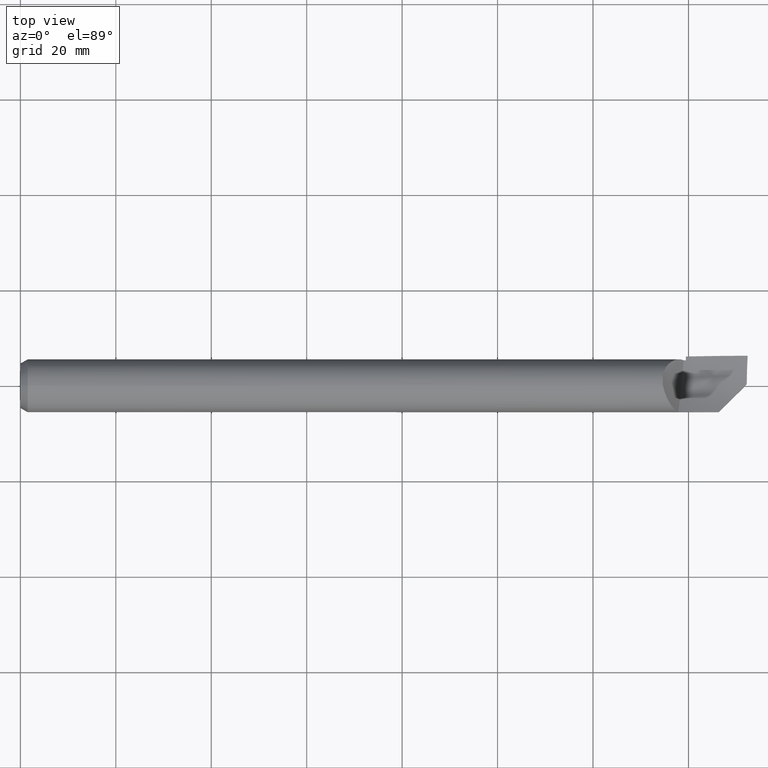
[diagram: clean part render]
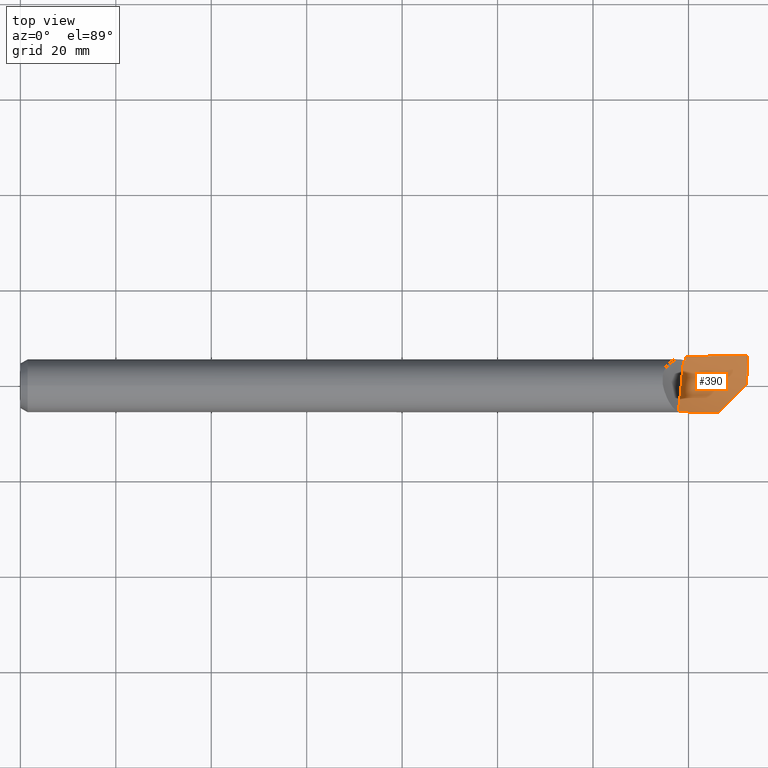
[diagram: same view with one face highlighted and labeled with its STEP entity id]
A machine part, top view. The second image highlights one B-rep face of the part: STEP entity #390.
In plain terms, the highlighted face is a freeform B-spline surface patch.
Its self-contained STEP definition (entity closure, byte-faithful):
#5 = CARTESIAN_POINT ( 'NONE',  ( 5.428289023255820744, -0.2151305318689210322, 0.03907271116514884901 ) ) ;
#7 = VERTEX_POINT ( 'NONE', #640 ) ;
#12 = ORIENTED_EDGE ( 'NONE', *, *, #306, .T. ) ;
#20 =( BOUNDED_CURVE ( )  B_SPLINE_CURVE ( 2, ( #286, #75, #179 ),
 .UNSPECIFIED., .F., .T. ) 
 B_SPLINE_CURVE_WITH_KNOTS ( ( 3, 3 ),
 ( 0.3930158259847691404, 0.4074109194752292273 ),
 .UNSPECIFIED. ) 
 CURVE ( )  GEOMETRIC_REPRESENTATION_ITEM ( )  RATIONAL_B_SPLINE_CURVE ( ( 0.9733513826577548933, 0.9734889251378002761, 0.9736403117979952615 ) ) 
 REPRESENTATION_ITEM ( '' )  );
#28 = CARTESIAN_POINT ( 'NONE',  ( 5.759944547215720689, -0.2184195880241632803, 0.01003524127038001382 ) ) ;
#31 = B_SPLINE_CURVE_WITH_KNOTS ( 'NONE', 3,
 ( #165, #399, #279, #108 ),
 .UNSPECIFIED., .F., .F.,
 ( 4, 4 ),
 ( 9.486140722434075462E-13, 0.008165861144580312952 ),
 .UNSPECIFIED. ) ;
#34 = CARTESIAN_POINT ( 'NONE',  ( 5.992409909881796892, 0.01404577464190508510, -0.04600755233719666659 ) ) ;
#37 = CARTESIAN_POINT ( 'NONE',  ( 5.993796581184937189, 0.09343502413978975463, -0.04035679793326613779 ) ) ;
#66 = VERTEX_POINT ( 'NONE', #609 ) ;
#75 = CARTESIAN_POINT ( 'NONE',  ( 5.480670511054988481, 0.2112596837126563543, -0.05637239902461495256 ) ) ;
#86 = CARTESIAN_POINT ( 'NONE',  ( 5.952458880642437222, -0.02590525459744806233, -0.04690927801593707674 ) ) ;
#108 = CARTESIAN_POINT ( 'NONE',  ( 5.489999999999968239, 0.2426219749193216091, -0.05138085314958806132 ) ) ;
#113 = ORIENTED_EDGE ( 'NONE', *, *, #331, .T. ) ;
#117 = EDGE_LOOP ( 'NONE', ( #280, #413, #685, #430, #12, #289, #113, #439 ) ) ;
#128 = CARTESIAN_POINT ( 'NONE',  ( 5.489999999999968239, 0.2426219749193216091, -0.05138085314958806132 ) ) ;
#130 = CARTESIAN_POINT ( 'NONE',  ( 5.675925925925927373, 0.09757933157101621180, -0.08420579190847984896 ) ) ;
#133 = CARTESIAN_POINT ( 'NONE',  ( 5.992943527074801047, 0.05368886949585607860, -0.04447926573626069524 ) ) ;
#136 = CARTESIAN_POINT ( 'NONE',  ( 5.926130615619848996, 0.2477060359061866723, -0.008186851868489166198 ) ) ;
#139 = CARTESIAN_POINT ( 'NONE',  ( 5.809895244831493777, 0.2472116736001752357, -0.01975824981623535564 ) ) ;
#142 = CARTESIAN_POINT ( 'NONE',  ( 5.992409909881796892, 0.01404577464190508510, -0.04600755233719666659 ) ) ;
#144 = CARTESIAN_POINT ( 'NONE',  ( 5.848640842118944860, 0.2474659832089972644, -0.01591075100367607409 ) ) ;
#159 = CARTESIAN_POINT ( 'NONE',  ( 5.453529265273479254, 0.02632038727175991036, -0.05321014791944884276 ) ) ;
#165 = CARTESIAN_POINT ( 'NONE',  ( 5.809895244831493777, 0.2472116736001752357, -0.01975824981623535564 ) ) ;
#171 = B_SPLINE_CURVE_WITH_KNOTS ( 'NONE', 3,
 ( #201, #421, #246, #136, #308, #144, #139 ),
 .UNSPECIFIED., .F., .F.,
 ( 4, 3, 4 ),
 ( 6.776263578034401960E-21, 0.001885633772096463210, 0.004852637163711255412 ),
 .UNSPECIFIED. ) ;
#179 = CARTESIAN_POINT ( 'NONE',  ( 5.471346566983472215, 0.2110442653468279917, -0.05716765312847500030 ) ) ;
#183 = CARTESIAN_POINT ( 'NONE',  ( 5.351851851851854747, -0.1213287675546839833, -0.04010792443079629760 ) ) ;
#184 = VERTEX_POINT ( 'NONE', #142 ) ;
#186 = CARTESIAN_POINT ( 'NONE',  ( 6.000000000000000888, 0.2477392110322483298, -0.0008026259127263668785 ) ) ;
#196 = CARTESIAN_POINT ( 'NONE',  ( 5.994331206119609234, 0.1133106296732995510, -0.03741539065945066744 ) ) ;
#197 = EDGE_CURVE ( 'NONE', #184, #576, #629, .T. ) ;
#200 = CARTESIAN_POINT ( 'NONE',  ( 5.675925925925928262, 0.3026628233134074919, -0.01811048715039669660 ) ) ;
#201 = CARTESIAN_POINT ( 'NONE',  ( 6.000000000000000888, 0.2477392110322483298, -0.0008026259127263668785 ) ) ;
#207 = CARTESIAN_POINT ( 'NONE',  ( 5.759944547215720689, -0.2184195880241632803, 0.01003524127038001382 ) ) ;
#215 = VERTEX_POINT ( 'NONE', #251 ) ;
#216 = CARTESIAN_POINT ( 'NONE',  ( 5.467775382269694617, 0.1747646242851793319, -0.06124491988081876004 ) ) ;
#224 = CARTESIAN_POINT ( 'NONE',  ( 5.432181049313783205, -0.1841263147728427196, 0.01977626706365450890 ) ) ;
#229 = CARTESIAN_POINT ( 'NONE',  ( 5.593749806622911436, -0.2177474673098442060, 0.02466412019502455671 ) ) ;
#234 = CARTESIAN_POINT ( 'NONE',  ( 5.027777777777780344, -0.2711689373457302765, 0.1356472697095485735 ) ) ;
#242 = CARTESIAN_POINT ( 'NONE',  ( 5.996235550854351004, 0.1720403349151072014, -0.02608037137611426623 ) ) ;
#246 = CARTESIAN_POINT ( 'NONE',  ( 5.950754092320284627, 0.2477536593525600239, -0.005729369259274476670 ) ) ;
#251 = CARTESIAN_POINT ( 'NONE',  ( 5.809895244831493777, 0.2472116736001752357, -0.01975824981623535564 ) ) ;
#260 = CARTESIAN_POINT ( 'NONE',  ( 5.464212849416286488, 0.1377136875928074988, -0.06237143978746857026 ) ) ;
#279 = CARTESIAN_POINT ( 'NONE',  ( 5.596629930743068471, 0.2448327961100064953, -0.04093195773288702682 ) ) ;
#280 = ORIENTED_EDGE ( 'NONE', *, *, #638, .F. ) ;
#282 = CARTESIAN_POINT ( 'NONE',  ( 5.471346566983472215, 0.2110442653468279917, -0.05716765312847500030 ) ) ;
#286 = CARTESIAN_POINT ( 'NONE',  ( 5.490000000000002878, 0.2114691027157991898, -0.05557554405431821415 ) ) ;
#289 = ORIENTED_EDGE ( 'NONE', *, *, #606, .T. ) ;
#291 = FACE_OUTER_BOUND ( 'NONE', #117, .T. ) ;
#292 = EDGE_CURVE ( 'NONE', #215, #335, #31, .T. ) ;
#296 = CARTESIAN_POINT ( 'NONE',  ( 5.759944547215720689, -0.2184195880241632803, 0.01003524127038001382 ) ) ;
#298 =( BOUNDED_SURFACE ( )  B_SPLINE_SURFACE ( 3, 2, ( 
 ( #341, #461, #471, #234, #635 ),
 ( #517, #465, #183, #572, #412 ),
 ( #642, #130, #647, #714, #526 ),
 ( #717, #200, #603, #359, #476 ) ),
 .UNSPECIFIED., .F., .F., .T. ) 
 B_SPLINE_SURFACE_WITH_KNOTS ( ( 4, 4 ),
 ( 3, 2, 3 ),
 ( 0.000000000000000000, 1.000000000000000000 ),
 ( 0.000000000000000000, 0.5000000000000000000, 1.000000000000000000 ),
 .UNSPECIFIED. ) 
 GEOMETRIC_REPRESENTATION_ITEM ( )  RATIONAL_B_SPLINE_SURFACE ( (
 ( 1.000000000000000000, 0.9914448613738103822, 1.000000000000000000, 0.9914448613738103822, 1.000000000000000000),
 ( 0.9357396776127722138, 0.9277342949527689342, 0.9357396776127722138, 0.9277342949527689342, 0.9357396776127722138),
 ( 0.9357396776127722138, 0.9277342949527689342, 0.9357396776127722138, 0.9277342949527689342, 0.9357396776127722138),
 ( 1.000000000000000000, 0.9914448613738103822, 1.000000000000000000, 0.9914448613738103822, 1.000000000000000000) ) ) 
 REPRESENTATION_ITEM ( '' )  SURFACE ( )  );
#306 = EDGE_CURVE ( 'NONE', #66, #7, #20, .T. ) ;
#308 = CARTESIAN_POINT ( 'NONE',  ( 5.887386176554733730, 0.2476311015767038437, -0.01205364072063427536 ) ) ;
#309 = CARTESIAN_POINT ( 'NONE',  ( 5.835613050715351413, -0.1427510845245330839, -0.02409170463590315156 ) ) ;
#331 = EDGE_CURVE ( 'NONE', #705, #576, #631, .T. ) ;
#335 = VERTEX_POINT ( 'NONE', #128 ) ;
#336 = CARTESIAN_POINT ( 'NONE',  ( 5.442851900054501257, -0.08240101752907343091, -0.02541948207811101437 ) ) ;
#341 = CARTESIAN_POINT ( 'NONE',  ( 6.000000000000000888, -0.2998500000000000054, 0.02136551425118393688 ) ) ;
#359 = CARTESIAN_POINT ( 'NONE',  ( 5.027777777777780344, 0.2876624987053781890, -0.09582829018325357551 ) ) ;
#363 = B_SPLINE_CURVE_WITH_KNOTS ( 'NONE', 3,
 ( #597, #645, #242, #196, #37, #133, #532, #648 ),
 .UNSPECIFIED., .F., .F.,
 ( 4, 2, 2, 4 ),
 ( 4.065758146820641628E-20, 0.003035248955598651363, 0.004552873433397977045, 0.006070497911197302726 ),
 .UNSPECIFIED. ) ;
#370 = CARTESIAN_POINT ( 'NONE',  ( 5.428289023255820744, -0.2151305318689210322, 0.03907271116514884901 ) ) ;
#381 = EDGE_CURVE ( 'NONE', #335, #66, #456, .T. ) ;
#390 = ADVANCED_FACE ( 'NONE', ( #291 ), #298, .T. ) ;
#399 = CARTESIAN_POINT ( 'NONE',  ( 5.703263665431204998, 0.2463618655492744725, -0.03039089554663984213 ) ) ;
#407 = CARTESIAN_POINT ( 'NONE',  ( 5.490000000000002878, 0.2218972837053053981, -0.05440913279074871545 ) ) ;
#412 = CARTESIAN_POINT ( 'NONE',  ( 4.703703703703706829, -0.1275752847551152036, -0.007339084284587429202 ) ) ;
#413 = ORIENTED_EDGE ( 'NONE', *, *, #661, .T. ) ;
#421 = CARTESIAN_POINT ( 'NONE',  ( 5.975377276411506955, 0.2477648454692880087, -0.003267969609746357480 ) ) ;
#430 = ORIENTED_EDGE ( 'NONE', *, *, #381, .T. ) ;
#439 = ORIENTED_EDGE ( 'NONE', *, *, #197, .F. ) ;
#445 = CARTESIAN_POINT ( 'NONE',  ( 5.457089790918026040, 0.06348854570549856968, -0.05835484118810305154 ) ) ;
#451 = B_SPLINE_CURVE_WITH_KNOTS ( 'NONE', 3,
 ( #282, #216, #260, #445, #159, #741, #336, #568, #224, #5 ),
 .UNSPECIFIED., .F., .F.,
 ( 4, 2, 2, 2, 4 ),
 ( 0.000000000000000000, 0.2500000000000000000, 0.5000000000000000000, 0.7500000000000000000, 1.000000000000000000 ),
 .UNSPECIFIED. ) ;
#456 =( BOUNDED_CURVE ( )  B_SPLINE_CURVE ( 3, ( #468, #701, #407, #524 ),
 .UNSPECIFIED., .F., .T. ) 
 B_SPLINE_CURVE_WITH_KNOTS ( ( 4, 4 ),
 ( 0.0002617011591299822290, 0.001057620901885627813 ),
 .UNSPECIFIED. ) 
 CURVE ( )  GEOMETRIC_REPRESENTATION_ITEM ( )  RATIONAL_B_SPLINE_CURVE ( ( 0.9808774511521617390, 0.9781997135498965434, 0.9756910240518259503, 0.9733513826579500705 ) ) 
 REPRESENTATION_ITEM ( '' )  );
#461 = CARTESIAN_POINT ( 'NONE',  ( 5.675925925925928262, -0.2970371766865925189, 0.06084151565276457729 ) ) ;
#465 = CARTESIAN_POINT ( 'NONE',  ( 5.675925925925927373, -0.1160484591303231200, -0.05608115970857106142 ) ) ;
#468 = CARTESIAN_POINT ( 'NONE',  ( 5.489999999999968239, 0.2426219749193216091, -0.05138085314958806132 ) ) ;
#471 = CARTESIAN_POINT ( 'NONE',  ( 5.351851851851853858, -0.2841030570161613977, 0.09824439268115654766 ) ) ;
#476 = CARTESIAN_POINT ( 'NONE',  ( 4.703703703703706829, 0.2703604744503558810, -0.1314219218935561984 ) ) ;
#517 = CARTESIAN_POINT ( 'NONE',  ( 6.000000000000000888, -0.1068138953506696520, -0.07014347580852543784 ) ) ;
#520 = CARTESIAN_POINT ( 'NONE',  ( 5.428289023255820744, -0.2151305318689210322, 0.03907271116514884901 ) ) ;
#524 = CARTESIAN_POINT ( 'NONE',  ( 5.490000000000002878, 0.2114691027157991898, -0.05557554405431821415 ) ) ;
#526 = CARTESIAN_POINT ( 'NONE',  ( 4.703703703703706829, 0.05743180894658971719, -0.1141529796352570847 ) ) ;
#532 = CARTESIAN_POINT ( 'NONE',  ( 5.992624683810753972, 0.03385053414723520476, -0.04566598811201452029 ) ) ;
#545 = CARTESIAN_POINT ( 'NONE',  ( 5.913117357248666828, -0.06524677799121704480, -0.04263809646310677548 ) ) ;
#568 = CARTESIAN_POINT ( 'NONE',  ( 5.435737264790459378, -0.1511528165519582523, 0.002841545197440638500 ) ) ;
#572 = CARTESIAN_POINT ( 'NONE',  ( 5.027777777777780344, -0.1266090759790448605, -0.02413468915302155807 ) ) ;
#576 = VERTEX_POINT ( 'NONE', #207 ) ;
#597 = CARTESIAN_POINT ( 'NONE',  ( 6.000000000000000888, 0.2477392110322483298, -0.0008026259127263668785 ) ) ;
#603 = CARTESIAN_POINT ( 'NONE',  ( 5.351851851851853858, 0.2951626610093928127, -0.05696938866682513258 ) ) ;
#606 = EDGE_CURVE ( 'NONE', #7, #705, #451, .T. ) ;
#609 = CARTESIAN_POINT ( 'NONE',  ( 5.490000000000002878, 0.2114691027157991898, -0.05557554405431821415 ) ) ;
#629 = B_SPLINE_CURVE_WITH_KNOTS ( 'NONE', 3,
 ( #34, #86, #545, #309, #719, #28 ),
 .UNSPECIFIED., .F., .F.,
 ( 4, 2, 4 ),
 ( 0.0002679580712596235257, 0.004503356390160879325, 0.008738754709062135015 ),
 .UNSPECIFIED. ) ;
#631 =( BOUNDED_CURVE ( )  B_SPLINE_CURVE ( 2, ( #520, #229, #296 ),
 .UNSPECIFIED., .F., .F. ) 
 B_SPLINE_CURVE_WITH_KNOTS ( ( 3, 3 ),
 ( 0.5593075405032371661, 0.8145556036202803440 ),
 .UNSPECIFIED. ) 
 CURVE ( )  GEOMETRIC_REPRESENTATION_ITEM ( )  RATIONAL_B_SPLINE_CURVE ( ( 0.9744143277570932460, 0.9711624498025578367, 0.9722633163224428943 ) ) 
 REPRESENTATION_ITEM ( '' )  );
#635 = CARTESIAN_POINT ( 'NONE',  ( 4.703703703703706829, -0.2489949601991719441, 0.1684280781064437238 ) ) ;
#638 = EDGE_CURVE ( 'NONE', #734, #184, #363, .T. ) ;
#640 = CARTESIAN_POINT ( 'NONE',  ( 5.471346566983472215, 0.2110442653468279917, -0.05716765312847500030 ) ) ;
#642 = CARTESIAN_POINT ( 'NONE',  ( 6.000000000000000888, 0.1068138953506696243, -0.07014347580852546560 ) ) ;
#645 = CARTESIAN_POINT ( 'NONE',  ( 5.997909695912630568, 0.2103325509907064406, -0.01516757485499449151 ) ) ;
#647 = CARTESIAN_POINT ( 'NONE',  ( 5.351851851851854747, 0.08501983269681530342, -0.09539886522747811903 ) ) ;
#648 = CARTESIAN_POINT ( 'NONE',  ( 5.992409909881796892, 0.01404577464190508510, -0.04600755233719666659 ) ) ;
#661 = EDGE_CURVE ( 'NONE', #734, #215, #171, .T. ) ;
#685 = ORIENTED_EDGE ( 'NONE', *, *, #292, .T. ) ;
#701 = CARTESIAN_POINT ( 'NONE',  ( 5.490000000000002878, 0.2322832564455104276, -0.05301006633052864070 ) ) ;
#705 = VERTEX_POINT ( 'NONE', #370 ) ;
#714 = CARTESIAN_POINT ( 'NONE',  ( 5.027777777777780344, 0.07246033382261446443, -0.1065919385464763891 ) ) ;
#717 = CARTESIAN_POINT ( 'NONE',  ( 6.000000000000000888, 0.2998499999999999499, 0.02136551425118393688 ) ) ;
#719 = CARTESIAN_POINT ( 'NONE',  ( 5.797449222074812170, -0.1809149131650679143, -0.009825367581799054895 ) ) ;
#734 = VERTEX_POINT ( 'NONE', #186 ) ;
#741 = CARTESIAN_POINT ( 'NONE',  ( 5.446410319841564984, -0.04662749994845894613, -0.03674176704074286204 ) ) ;